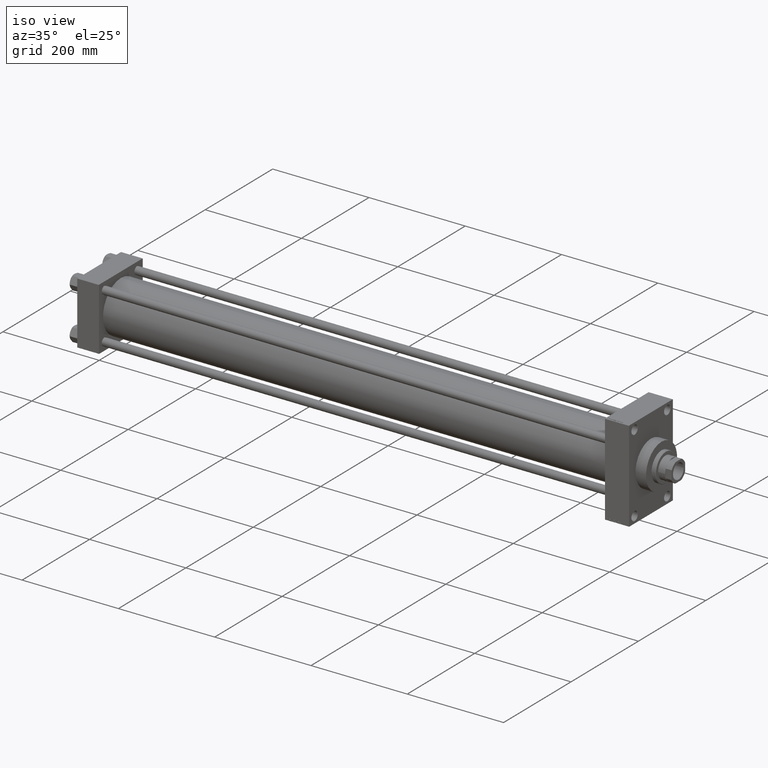
[diagram: clean part render]
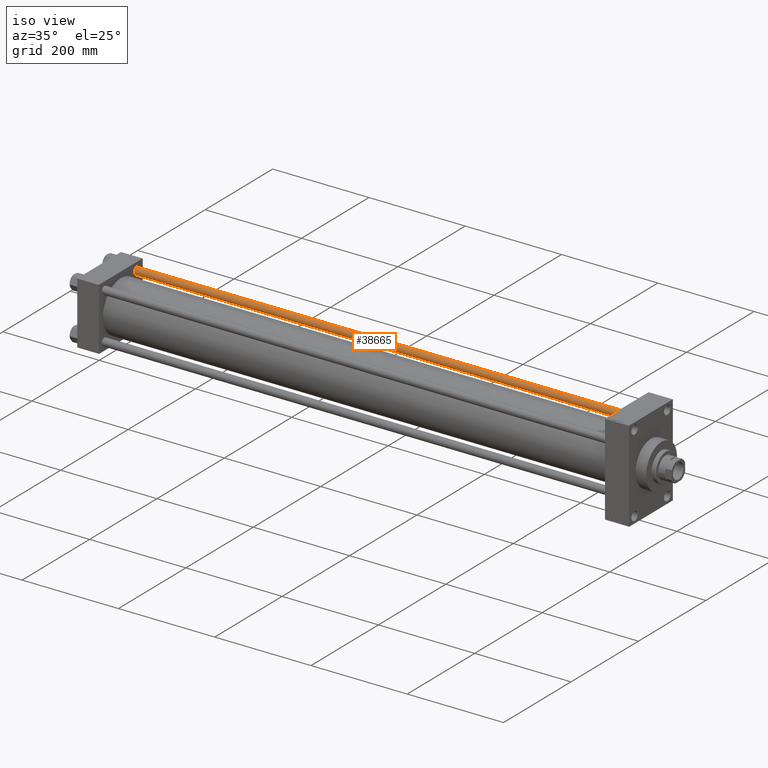
[diagram: same view with one face highlighted and labeled with its STEP entity id]
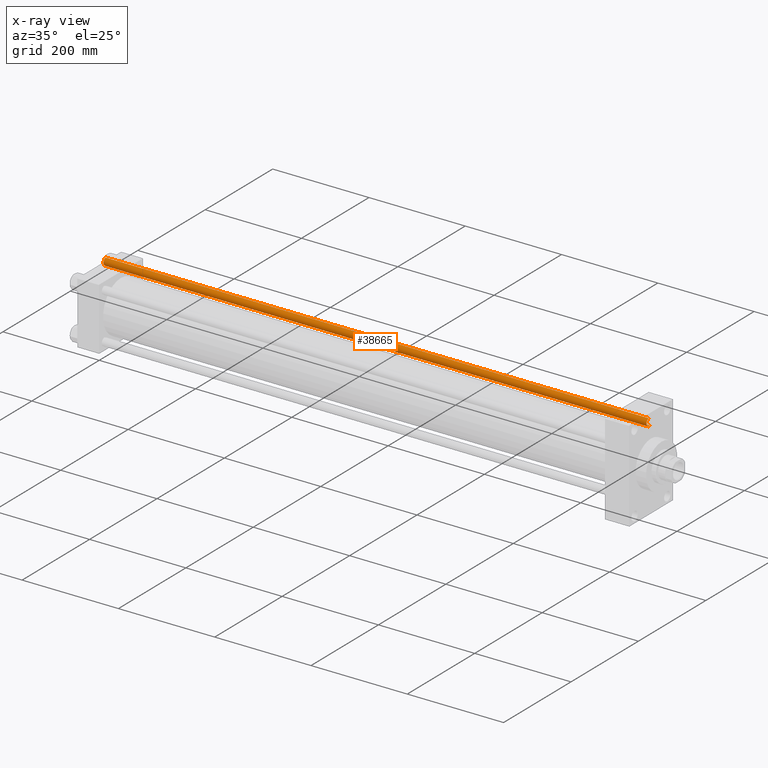
[diagram: x-ray of the same camera — body ghosted, the highlighted face saturated]
A machine part, iso view. The second image highlights one B-rep face of the part: STEP entity #38665.
The next image is the same camera in x-ray: the body ghosted, the highlighted face saturated — about 0% of this face is hidden behind the body in this view.
In plain terms, the highlighted cylindrical surface (edge-blend (fillet) strip) has radius 8 mm, axis along (-1, -0, 0).
Its self-contained STEP definition (entity closure, byte-faithful):
#608 = AXIS2_PLACEMENT_3D ( 'NONE', #37437, #15262, #29970 ) ;
#2502 = DIRECTION ( 'NONE',  ( -0.000000000000000000, -0.000000000000000000, 1.000000000000000000 ) ) ;
#2862 = LINE ( 'NONE', #18303, #35326 ) ;
#3532 = EDGE_LOOP ( 'NONE', ( #10135, #42147, #14815, #6549 ) ) ;
#3676 = AXIS2_PLACEMENT_3D ( 'NONE', #27857, #2502, #17223 ) ;
#4320 = EDGE_CURVE ( 'NONE', #13631, #15491, #40695, .T. ) ;
#5453 = CARTESIAN_POINT ( 'NONE',  ( -8.000000000000000000, 0.000000000000000000, 0.5000000000001669775 ) ) ;
#5778 = VERTEX_POINT ( 'NONE', #26852 ) ;
#6549 = ORIENTED_EDGE ( 'NONE', *, *, #9733, .T. ) ;
#9733 = EDGE_CURVE ( 'NONE', #15491, #33104, #24474, .T. ) ;
#10135 = ORIENTED_EDGE ( 'NONE', *, *, #38687, .F. ) ;
#10330 = DIRECTION ( 'NONE',  ( -1.000000000000000000, 0.000000000000000000, 0.000000000000000000 ) ) ;
#10569 = DIRECTION ( 'NONE',  ( -0.000000000000000000, -0.000000000000000000, -1.000000000000000000 ) ) ;
#10827 = DIRECTION ( 'NONE',  ( -0.000000000000000000, -0.000000000000000000, -1.000000000000000000 ) ) ;
#13631 = VERTEX_POINT ( 'NONE', #36214 ) ;
#14336 = EDGE_CURVE ( 'NONE', #5778, #13631, #37585, .T. ) ;
#14815 = ORIENTED_EDGE ( 'NONE', *, *, #4320, .T. ) ;
#15262 = DIRECTION ( 'NONE',  ( 0.000000000000000000, 0.000000000000000000, -1.000000000000000000 ) ) ;
#15491 = VERTEX_POINT ( 'NONE', #5453 ) ;
#15632 = DIRECTION ( 'NONE',  ( -0.000000000000000000, -0.000000000000000000, -1.000000000000000000 ) ) ;
#17223 = DIRECTION ( 'NONE',  ( 1.000000000000000000, 0.000000000000000000, 0.000000000000000000 ) ) ;
#18303 = CARTESIAN_POINT ( 'NONE',  ( 8.000000000000000000, 9.797174393178825657E-16, 1129.000000000000000 ) ) ;
#18546 = CYLINDRICAL_SURFACE ( 'NONE', #28381, 8.000000000000000000 ) ;
#21212 = CARTESIAN_POINT ( 'NONE',  ( 0.000000000000000000, 0.000000000000000000, 1129.000000000000000 ) ) ;
#24474 = CIRCLE ( 'NONE', #3676, 8.000000000000000000 ) ;
#25861 = VECTOR ( 'NONE', #10569, 1000.000000000000000 ) ;
#26852 = CARTESIAN_POINT ( 'NONE',  ( 8.000000000000000000, 9.797174393178825657E-16, 1128.500000000000000 ) ) ;
#27857 = CARTESIAN_POINT ( 'NONE',  ( 0.000000000000000000, 0.000000000000000000, 0.5000000000001669775 ) ) ;
#28381 = AXIS2_PLACEMENT_3D ( 'NONE', #21212, #10827, #10330 ) ;
#29970 = DIRECTION ( 'NONE',  ( 1.000000000000000000, 0.000000000000000000, 0.000000000000000000 ) ) ;
#33104 = VERTEX_POINT ( 'NONE', #45338 ) ;
#35326 = VECTOR ( 'NONE', #15632, 1000.000000000000000 ) ;
#36214 = CARTESIAN_POINT ( 'NONE',  ( -8.000000000000000000, 0.000000000000000000, 1128.500000000000000 ) ) ;
#36628 = FACE_OUTER_BOUND ( 'NONE', #3532, .T. ) ;
#37098 = CARTESIAN_POINT ( 'NONE',  ( -8.000000000000000000, 0.000000000000000000, 1129.000000000000000 ) ) ;
#37437 = CARTESIAN_POINT ( 'NONE',  ( 0.000000000000000000, 0.000000000000000000, 1128.500000000000000 ) ) ;
#37585 = CIRCLE ( 'NONE', #608, 8.000000000000000000 ) ;
#38665 = ADVANCED_FACE ( 'NONE', ( #36628 ), #18546, .T. ) ;
#38687 = EDGE_CURVE ( 'NONE', #5778, #33104, #2862, .T. ) ;
#40695 = LINE ( 'NONE', #37098, #25861 ) ;
#42147 = ORIENTED_EDGE ( 'NONE', *, *, #14336, .T. ) ;
#45338 = CARTESIAN_POINT ( 'NONE',  ( 8.000000000000000000, 9.797174393178825657E-16, 0.5000000000001669775 ) ) ;